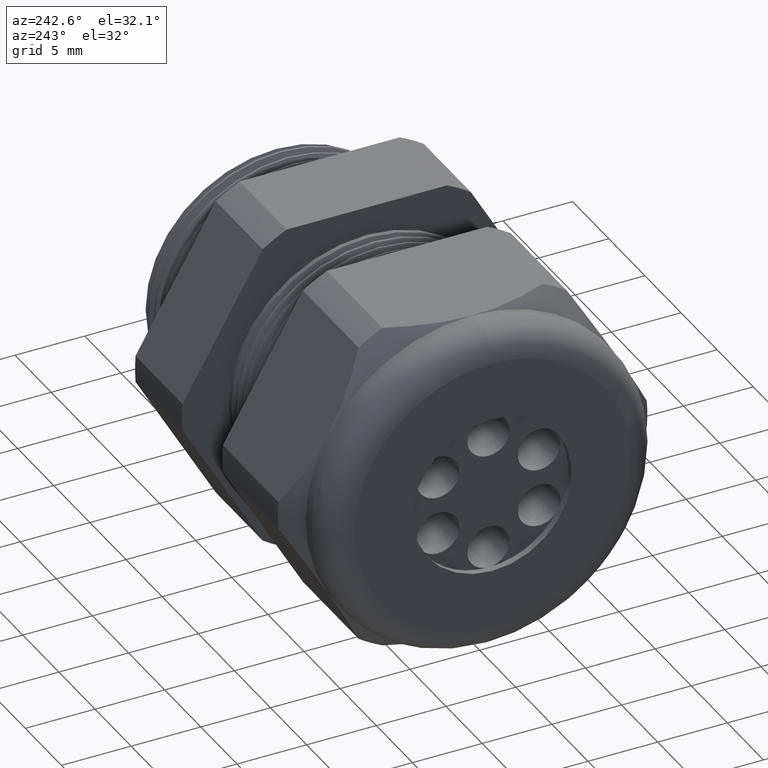
[diagram: clean part render]
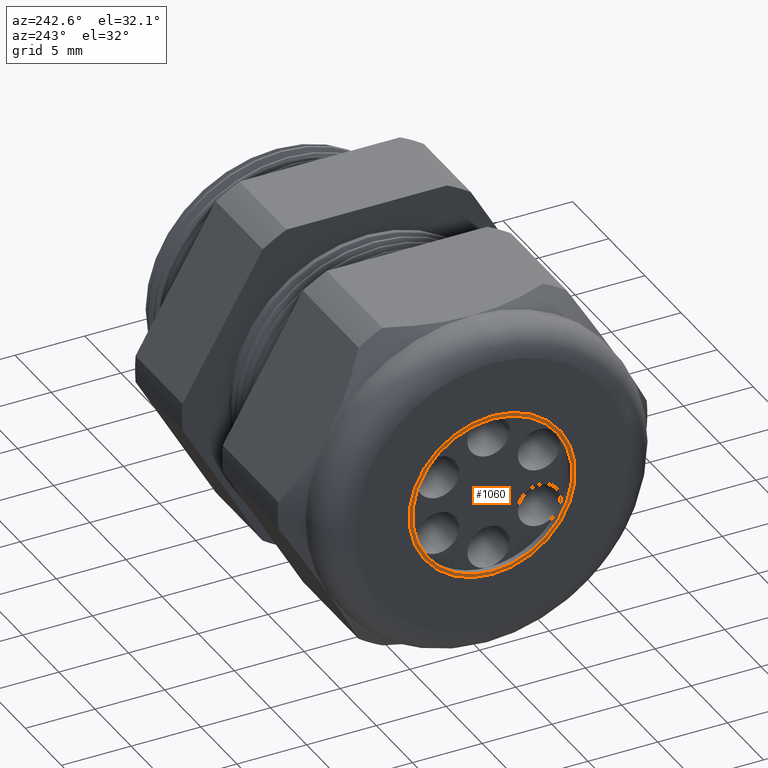
[diagram: same view with one face highlighted and labeled with its STEP entity id]
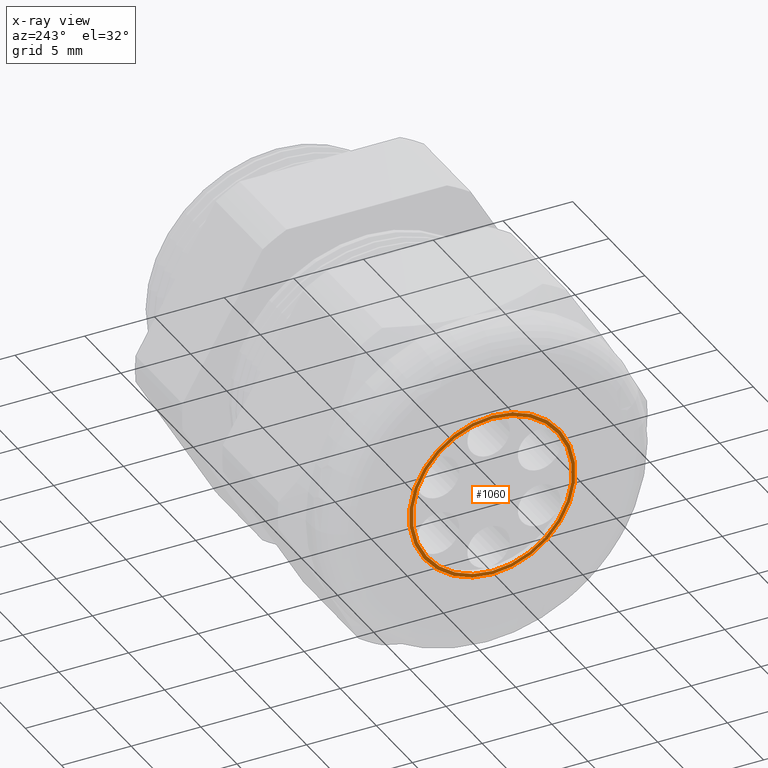
[diagram: x-ray of the same camera — body ghosted, the highlighted face saturated]
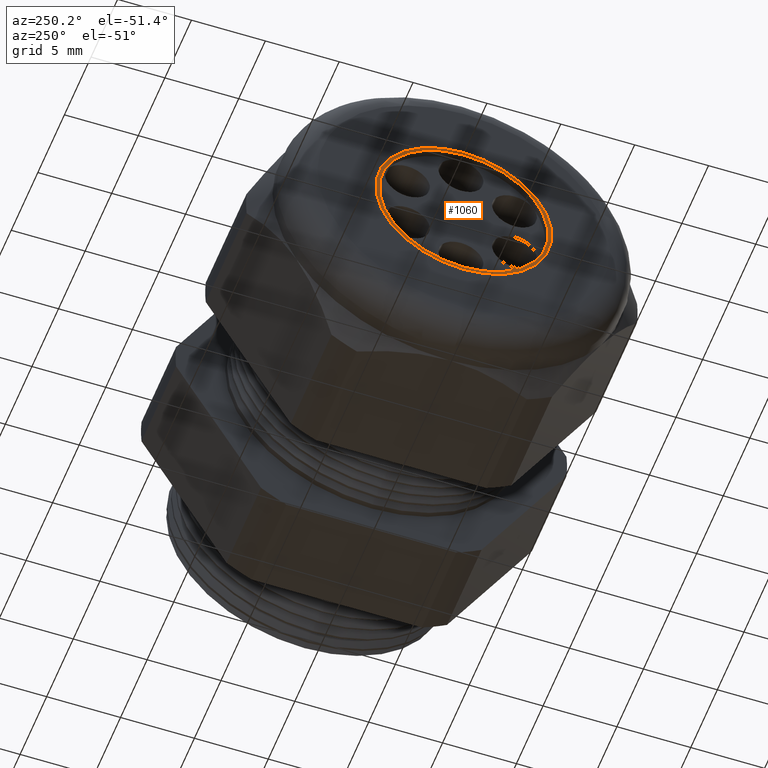
[diagram: same view with one face highlighted and labeled with its STEP entity id]
A machine part, auxiliary view. The second image highlights one B-rep face of the part: STEP entity #1060.
The next image is the same camera in x-ray: the body ghosted, the highlighted face saturated — about 0% of this face is hidden behind the body in this view.
A second angle (auxiliary view) of the same face is appended — the face is thin or edge-on in the first view.
In plain terms, the highlighted planar face has unit normal (-1, 0, 0).
Its self-contained STEP definition (entity closure, byte-faithful):
#968 = VERTEX_POINT ( 'NONE', #2975 ) ;
#971 = EDGE_CURVE ( 'NONE', #976, #1029, #2973, .T. ) ;
#976 = VERTEX_POINT ( 'NONE', #3027 ) ;
#978 = EDGE_CURVE ( 'NONE', #979, #968, #3025, .T. ) ;
#979 = VERTEX_POINT ( 'NONE', #3020 ) ;
#983 = EDGE_CURVE ( 'NONE', #968, #979, #3012, .T. ) ;
#1029 = VERTEX_POINT ( 'NONE', #3112 ) ;
#1060 = ADVANCED_FACE ( 'NONE', ( #3195, #3194 ), #3192, .T. ) ;
#1100 = ORIENTED_EDGE ( 'NONE', *, *, #978, .T. ) ;
#1101 = EDGE_LOOP ( 'NONE', ( #1103, #1106 ) ) ;
#1103 = ORIENTED_EDGE ( 'NONE', *, *, #1108, .F. ) ;
#1105 = EDGE_LOOP ( 'NONE', ( #1100, #1109 ) ) ;
#1106 = ORIENTED_EDGE ( 'NONE', *, *, #971, .F. ) ;
#1108 = EDGE_CURVE ( 'NONE', #1029, #976, #3304, .T. ) ;
#1109 = ORIENTED_EDGE ( 'NONE', *, *, #983, .T. ) ;
#2969 = DIRECTION ( 'NONE',  ( 0.0000000000000000000, 0.0000000000000000000, 1.000000000000000000 ) ) ;
#2970 = DIRECTION ( 'NONE',  ( -1.000000000000000000, 0.0000000000000000000, 0.0000000000000000000 ) ) ;
#2971 = CARTESIAN_POINT ( 'NONE',  ( -1.249999999999999800, 0.0000000000000000000, 0.0000000000000000000 ) ) ;
#2972 = AXIS2_PLACEMENT_3D ( 'NONE', #2971, #2970, #2969 ) ;
#2973 = CIRCLE ( 'NONE', #2972, 0.2250000000000000300 ) ;
#2975 = CARTESIAN_POINT ( 'NONE',  ( -1.249999999999999800, 2.877919977996280400E-017, -0.2350000000000000100 ) ) ;
#3008 = DIRECTION ( 'NONE',  ( 0.0000000000000000000, 0.0000000000000000000, 1.000000000000000000 ) ) ;
#3009 = DIRECTION ( 'NONE',  ( -1.000000000000000000, 0.0000000000000000000, 0.0000000000000000000 ) ) ;
#3010 = CARTESIAN_POINT ( 'NONE',  ( -1.249999999999999800, 0.0000000000000000000, 0.0000000000000000000 ) ) ;
#3011 = AXIS2_PLACEMENT_3D ( 'NONE', #3010, #3009, #3008 ) ;
#3012 = CIRCLE ( 'NONE', #3011, 0.2350000000000000100 ) ;
#3020 = CARTESIAN_POINT ( 'NONE',  ( -1.249999999999999800, 0.0000000000000000000, 0.2350000000000000100 ) ) ;
#3021 = DIRECTION ( 'NONE',  ( 0.0000000000000000000, 0.0000000000000000000, 1.000000000000000000 ) ) ;
#3022 = DIRECTION ( 'NONE',  ( -1.000000000000000000, 0.0000000000000000000, 0.0000000000000000000 ) ) ;
#3023 = CARTESIAN_POINT ( 'NONE',  ( -1.249999999999999800, 0.0000000000000000000, 0.0000000000000000000 ) ) ;
#3024 = AXIS2_PLACEMENT_3D ( 'NONE', #3023, #3022, #3021 ) ;
#3025 = CIRCLE ( 'NONE', #3024, 0.2350000000000000100 ) ;
#3027 = CARTESIAN_POINT ( 'NONE',  ( -1.249999999999999800, 2.755455298081545100E-017, -0.2250000000000000300 ) ) ;
#3112 = CARTESIAN_POINT ( 'NONE',  ( -1.249999999999999800, 0.0000000000000000000, 0.2250000000000000300 ) ) ;
#3188 = DIRECTION ( 'NONE',  ( 0.0000000000000000000, 0.0000000000000000000, 1.000000000000000000 ) ) ;
#3189 = DIRECTION ( 'NONE',  ( -1.000000000000000000, 0.0000000000000000000, 0.0000000000000000000 ) ) ;
#3190 = CARTESIAN_POINT ( 'NONE',  ( -1.249999999999999800, 0.0000000000000000000, 0.0000000000000000000 ) ) ;
#3191 = AXIS2_PLACEMENT_3D ( 'NONE', #3190, #3189, #3188 ) ;
#3192 = PLANE ( 'NONE',  #3191 ) ;
#3194 = FACE_OUTER_BOUND ( 'NONE', #1105, .T. ) ;
#3195 = FACE_BOUND ( 'NONE', #1101, .T. ) ;
#3300 = DIRECTION ( 'NONE',  ( 0.0000000000000000000, 0.0000000000000000000, 1.000000000000000000 ) ) ;
#3301 = DIRECTION ( 'NONE',  ( -1.000000000000000000, 0.0000000000000000000, 0.0000000000000000000 ) ) ;
#3302 = CARTESIAN_POINT ( 'NONE',  ( -1.249999999999999800, 0.0000000000000000000, 0.0000000000000000000 ) ) ;
#3303 = AXIS2_PLACEMENT_3D ( 'NONE', #3302, #3301, #3300 ) ;
#3304 = CIRCLE ( 'NONE', #3303, 0.2250000000000000300 ) ;